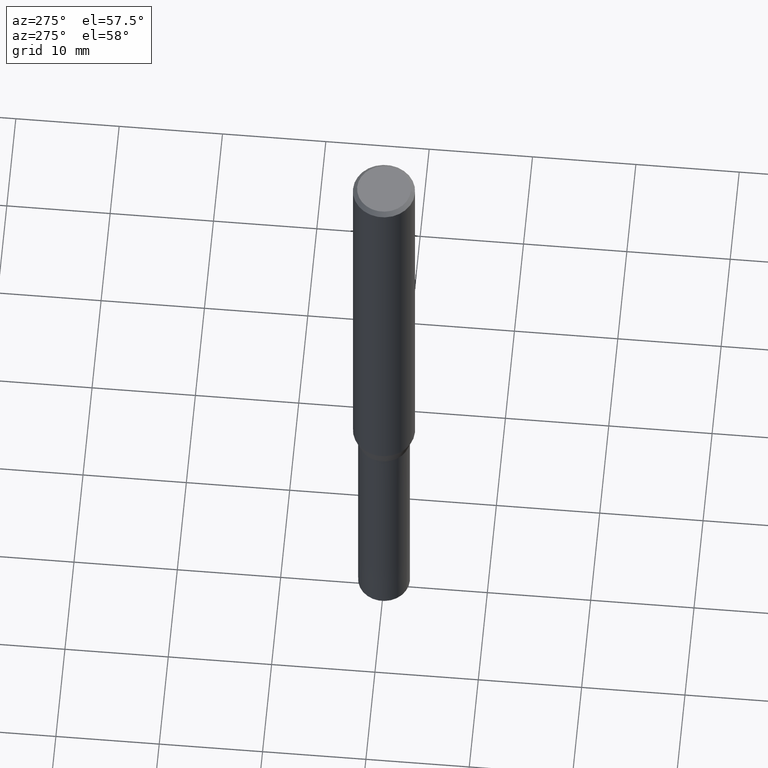
[diagram: clean part render]
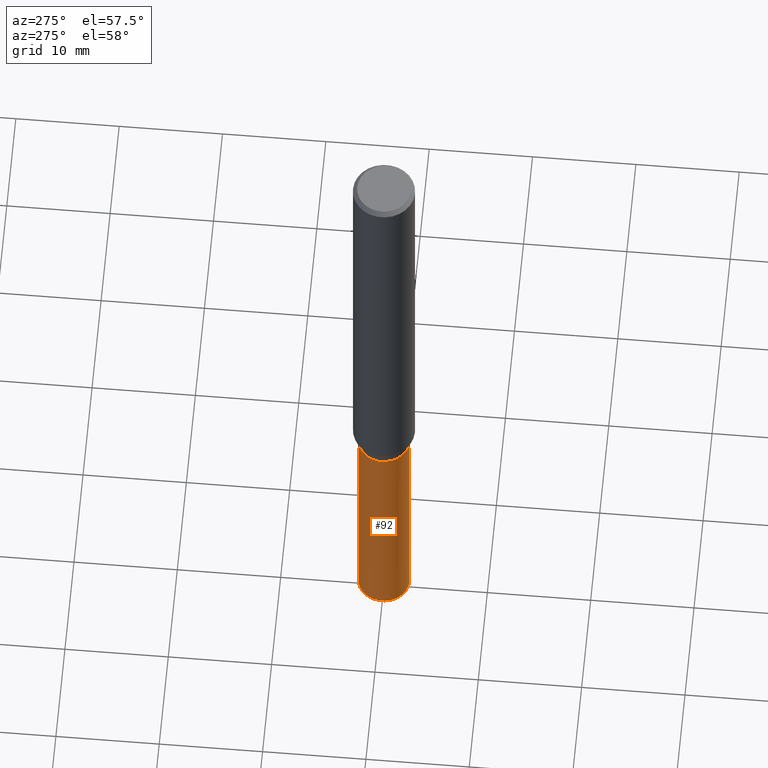
[diagram: same view with one face highlighted and labeled with its STEP entity id]
A machine part, auxiliary view. The second image highlights one B-rep face of the part: STEP entity #92.
In plain terms, the highlighted conical surface has half-angle 0 deg.
Its self-contained STEP definition (entity closure, byte-faithful):
#92=ADVANCED_FACE('',(#213),#214,.T.);
#94=VERTEX_POINT('',#216);
#100=VERTEX_POINT('',#222);
#112=EDGE_CURVE('',#100,#126,#234,.T.);
#126=VERTEX_POINT('',#250);
#136=EDGE_CURVE('',#126,#94,#262,.T.);
#160=EDGE_CURVE('',#100,#172,#291,.T.);
#172=VERTEX_POINT('',#306);
#184=EDGE_CURVE('',#94,#172,#319,.T.);
#213=FACE_OUTER_BOUND('',#345,.T.);
#214=CONICAL_SURFACE('',#346,2.49995,3.99999999998711E-006);
#216=CARTESIAN_POINT('',(0.0,2.4999,-45.0));
#222=CARTESIAN_POINT('',(3.06151588455594E-016,-2.5,-70.0));
#234=LINE('',#372,#373);
#250=CARTESIAN_POINT('',(3.06139342392056E-016,-2.4999,-45.0));
#262=CIRCLE('',#406,2.4999);
#291=CIRCLE('',#442,2.5);
#306=CARTESIAN_POINT('',(0.0,2.5,-70.0));
#319=LINE('',#473,#474);
#345=EDGE_LOOP('',(#482,#483,#484,#485));
#346=AXIS2_PLACEMENT_3D('',#486,#487,#488);
#372=CARTESIAN_POINT('',(3.06145465423825E-016,-2.49995,-57.5));
#373=VECTOR('',#504,1.0);
#406=AXIS2_PLACEMENT_3D('',#541,#542,#543);
#442=AXIS2_PLACEMENT_3D('',#593,#594,#595);
#473=CARTESIAN_POINT('',(-3.06145465423825E-016,2.49995,-57.5));
#474=VECTOR('',#623,1.0);
#482=ORIENTED_EDGE('',*,*,#184,.T.);
#483=ORIENTED_EDGE('',*,*,#160,.F.);
#484=ORIENTED_EDGE('',*,*,#112,.T.);
#485=ORIENTED_EDGE('',*,*,#136,.T.);
#486=CARTESIAN_POINT('',(0.0,0.0,-57.5));
#487=DIRECTION('',(0.0,-0.0,-1.0));
#488=DIRECTION('',(0.0,1.0,0.0));
#504=DIRECTION('',(-4.89842541526066E-022,3.99999999997644E-006,0.999999999992));
#541=CARTESIAN_POINT('',(0.0,0.0,-45.0));
#542=DIRECTION('',(0.0,0.0,-1.0));
#543=DIRECTION('',(0.0,1.0,0.0));
#593=CARTESIAN_POINT('',(0.0,0.0,-70.0));
#594=DIRECTION('',(0.0,0.0,-1.0));
#595=DIRECTION('',(0.0,1.0,0.0));
#623=DIRECTION('',(-4.89842541526066E-022,3.99999999997644E-006,-0.999999999992));